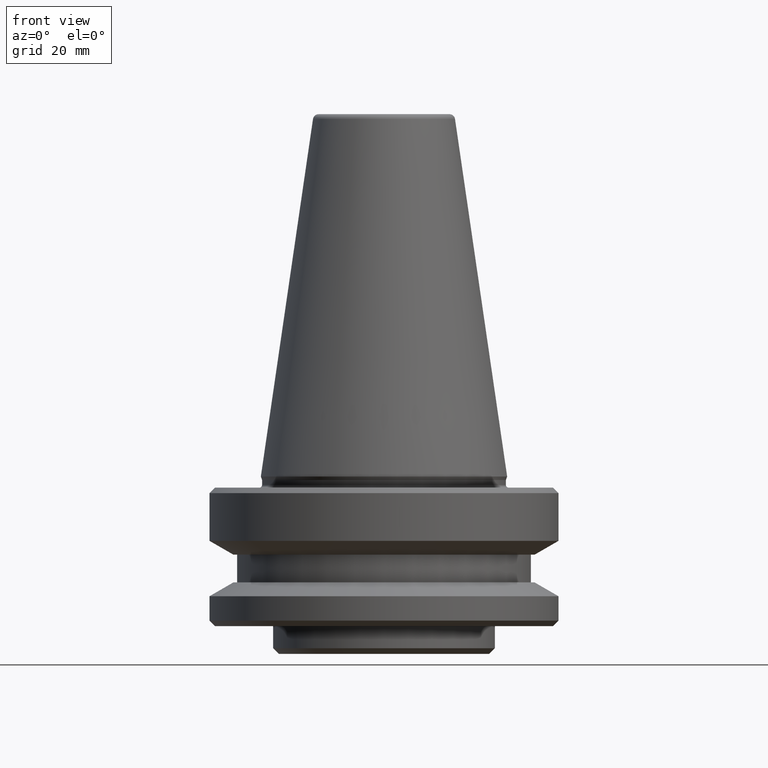
[diagram: clean part render]
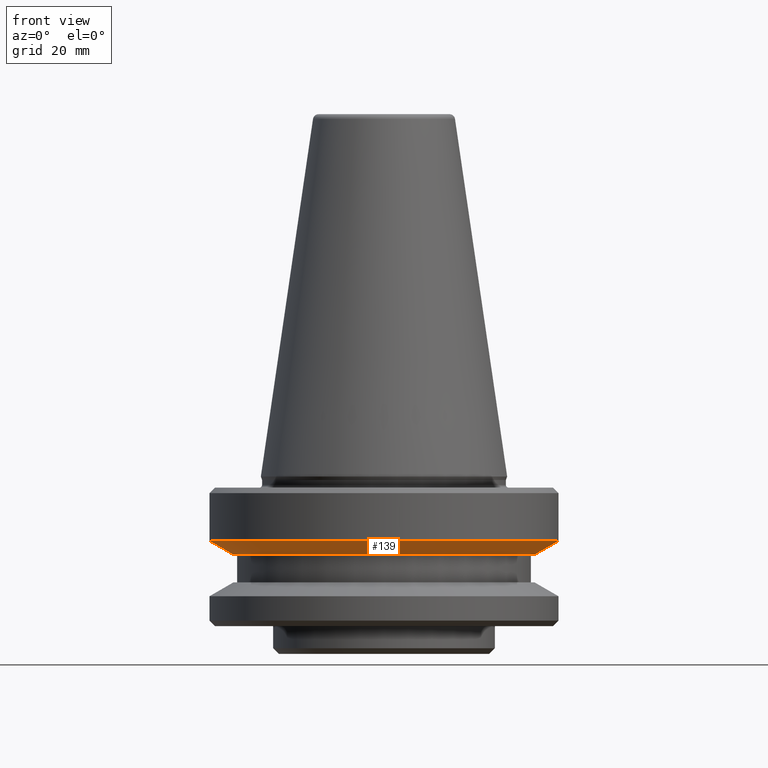
[diagram: same view with one face highlighted and labeled with its STEP entity id]
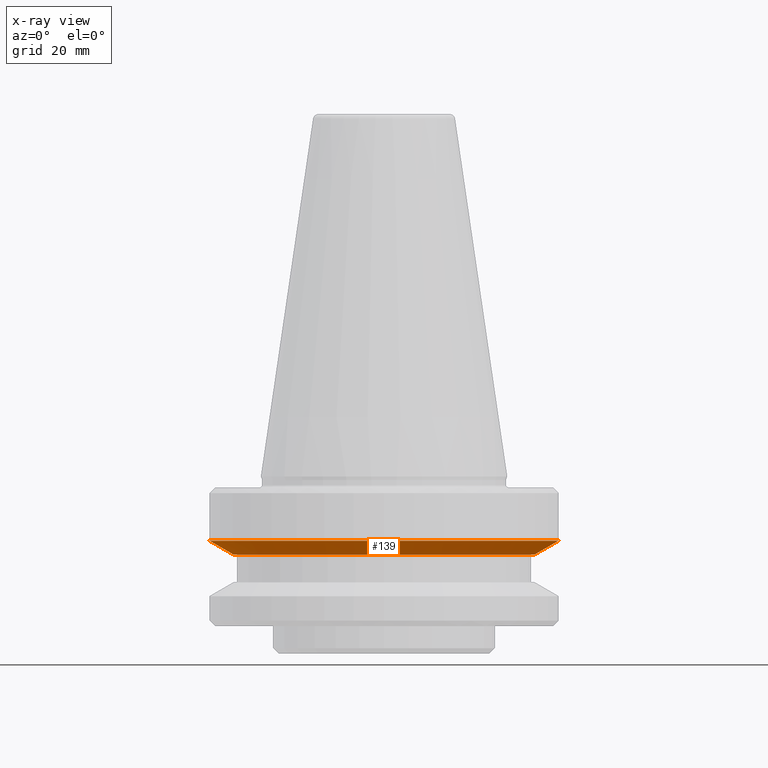
[diagram: x-ray of the same camera — body ghosted, the highlighted face saturated]
A machine part, front view. The second image highlights one B-rep face of the part: STEP entity #139.
The next image is the same camera in x-ray: the body ghosted, the highlighted face saturated — about 0% of this face is hidden behind the body in this view.
In plain terms, the highlighted conical surface has half-angle 60 deg.
Its self-contained STEP definition (entity closure, byte-faithful):
#15 = DIRECTION ( 'NONE',  ( 0.8660254037844413700, 0.0000000000000000000, 0.4999999999999952800 ) ) ;
#16 = ORIENTED_EDGE ( 'NONE', *, *, #367, .F. ) ;
#46 = EDGE_CURVE ( 'NONE', #403, #274, #564, .T. ) ;
#52 = EDGE_CURVE ( 'NONE', #195, #274, #156, .T. ) ;
#66 = CARTESIAN_POINT ( 'NONE',  ( 0.0000000000000000000, 0.0000000000000000000, -14.10000000000089000 ) ) ;
#88 = AXIS2_PLACEMENT_3D ( 'NONE', #811, #317, #863 ) ;
#98 = ORIENTED_EDGE ( 'NONE', *, *, #46, .F. ) ;
#114 = LINE ( 'NONE', #467, #501 ) ;
#139 = ADVANCED_FACE ( 'NONE', ( #897 ), #464, .T. ) ;
#156 = LINE ( 'NONE', #1000, #949 ) ;
#195 = VERTEX_POINT ( 'NONE', #246 ) ;
#246 = CARTESIAN_POINT ( 'NONE',  ( 27.16962701892278200, 0.0000000000000000000, -14.10000000000089000 ) ) ;
#257 = AXIS2_PLACEMENT_3D ( 'NONE', #66, #751, #663 ) ;
#267 = ORIENTED_EDGE ( 'NONE', *, *, #52, .T. ) ;
#274 = VERTEX_POINT ( 'NONE', #788 ) ;
#317 = DIRECTION ( 'NONE',  ( -0.0000000000000000000, -0.0000000000000000000, 1.000000000000000000 ) ) ;
#327 = AXIS2_PLACEMENT_3D ( 'NONE', #891, #463, #887 ) ;
#367 = EDGE_CURVE ( 'NONE', #787, #403, #114, .T. ) ;
#403 = VERTEX_POINT ( 'NONE', #649 ) ;
#463 = DIRECTION ( 'NONE',  ( -0.0000000000000000000, -0.0000000000000000000, 1.000000000000000000 ) ) ;
#464 = CONICAL_SURFACE ( 'NONE', #257, 27.16962701892278200, 1.047197551196603200 ) ;
#467 = CARTESIAN_POINT ( 'NONE',  ( -27.16962701892278200, 3.327319676275122900E-015, -14.10000000000089000 ) ) ;
#501 = VECTOR ( 'NONE', #628, 1000.000000000000000 ) ;
#564 = CIRCLE ( 'NONE', #88, 31.50000000000008500 ) ;
#565 = EDGE_CURVE ( 'NONE', #787, #195, #786, .T. ) ;
#615 = EDGE_LOOP ( 'NONE', ( #16, #656, #267, #98 ) ) ;
#628 = DIRECTION ( 'NONE',  ( -0.8660254037844413700, 1.060575238724910200E-016, 0.4999999999999952800 ) ) ;
#649 = CARTESIAN_POINT ( 'NONE',  ( -31.50000000000008500, 3.857637417314172900E-015, -11.59985799368445900 ) ) ;
#656 = ORIENTED_EDGE ( 'NONE', *, *, #565, .T. ) ;
#663 = DIRECTION ( 'NONE',  ( 1.000000000000000000, 0.0000000000000000000, 0.0000000000000000000 ) ) ;
#751 = DIRECTION ( 'NONE',  ( -0.0000000000000000000, -0.0000000000000000000, 1.000000000000000000 ) ) ;
#757 = CARTESIAN_POINT ( 'NONE',  ( -27.16962701892278200, 3.592478546794647300E-015, -14.10000000000089000 ) ) ;
#786 = CIRCLE ( 'NONE', #327, 27.16962701892278200 ) ;
#787 = VERTEX_POINT ( 'NONE', #757 ) ;
#788 = CARTESIAN_POINT ( 'NONE',  ( 31.50000000000008500, 0.0000000000000000000, -11.59985799368445900 ) ) ;
#811 = CARTESIAN_POINT ( 'NONE',  ( 0.0000000000000000000, 0.0000000000000000000, -11.59985799368445900 ) ) ;
#863 = DIRECTION ( 'NONE',  ( 1.000000000000000000, 0.0000000000000000000, 0.0000000000000000000 ) ) ;
#887 = DIRECTION ( 'NONE',  ( 1.000000000000000000, 0.0000000000000000000, 0.0000000000000000000 ) ) ;
#891 = CARTESIAN_POINT ( 'NONE',  ( 0.0000000000000000000, 0.0000000000000000000, -14.10000000000089000 ) ) ;
#897 = FACE_OUTER_BOUND ( 'NONE', #615, .T. ) ;
#949 = VECTOR ( 'NONE', #15, 1000.000000000000000 ) ;
#1000 = CARTESIAN_POINT ( 'NONE',  ( 27.16962701892278200, 0.0000000000000000000, -14.10000000000089000 ) ) ;